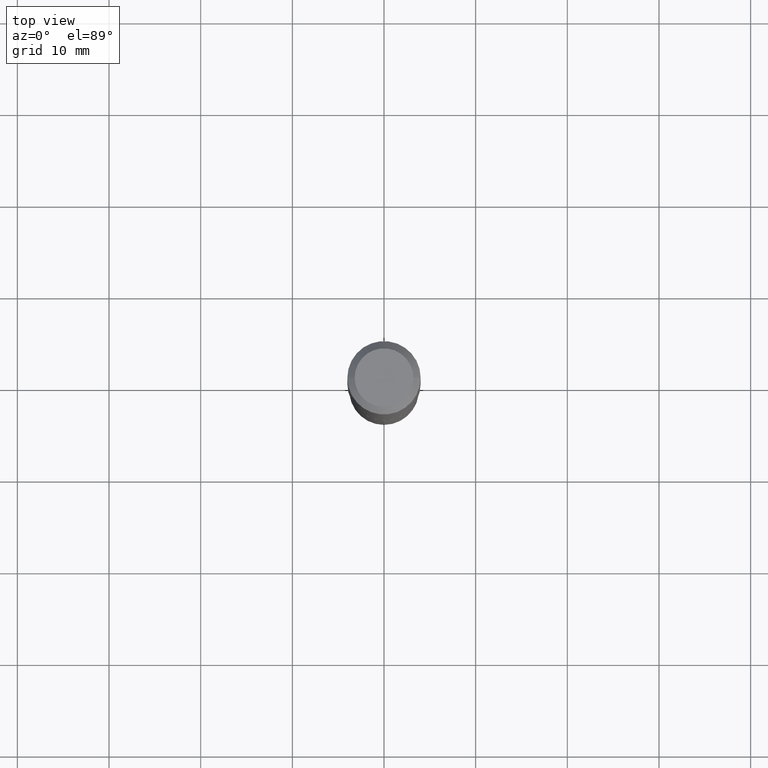
[diagram: clean part render]
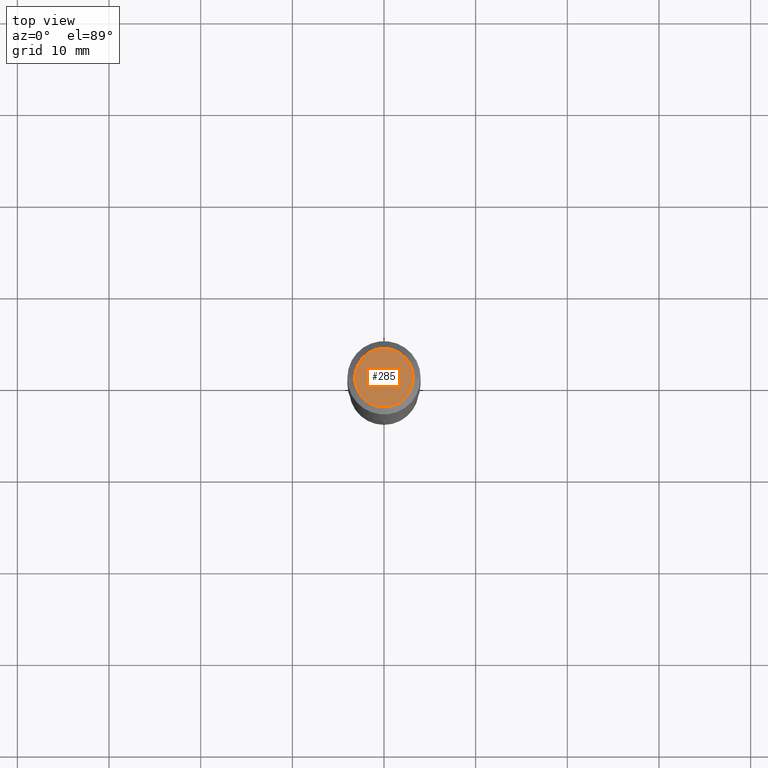
[diagram: same view with one face highlighted and labeled with its STEP entity id]
A machine part, top view. The second image highlights one B-rep face of the part: STEP entity #285.
In plain terms, the highlighted planar face has unit normal (0, -0, -1).
Its self-contained STEP definition (entity closure, byte-faithful):
#38 = CARTESIAN_POINT ( 'NONE',  ( -4.719860820353100843E-47, 6.738710358733633822E-33, 1.930043355456229866E-18 ) ) ;
#138 = CIRCLE ( 'NONE', #164, 0.1260000000000000009 ) ;
#152 = CARTESIAN_POINT ( 'NONE',  ( -9.439721640706201686E-47, 1.347742071746726764E-32, 3.860086710912459732E-18 ) ) ;
#161 = EDGE_CURVE ( 'NONE', #183, #429, #196, .T. ) ;
#163 = DIRECTION ( 'NONE',  ( -1.000000000000000000, 6.982962677686265922E-15, -4.876176775795935793E-29 ) ) ;
#164 = AXIS2_PLACEMENT_3D ( 'NONE', #152, #224, #295 ) ;
#168 = CARTESIAN_POINT ( 'NONE',  ( -0.1260000000000000009, 9.348441284752484904E-16, 3.860086710906114178E-18 ) ) ;
#183 = VERTEX_POINT ( 'NONE', #168 ) ;
#196 = CIRCLE ( 'NONE', #260, 0.1260000000000000009 ) ;
#201 = EDGE_LOOP ( 'NONE', ( #247, #215 ) ) ;
#208 = CARTESIAN_POINT ( 'NONE',  ( -9.439721640706201686E-47, 1.347742071746726764E-32, 3.860086710912459732E-18 ) ) ;
#215 = ORIENTED_EDGE ( 'NONE', *, *, #249, .T. ) ;
#224 = DIRECTION ( 'NONE',  ( -2.445468806185136597E-29, 3.491481338843145583E-15, 1.000000000000000000 ) ) ;
#247 = ORIENTED_EDGE ( 'NONE', *, *, #161, .T. ) ;
#249 = EDGE_CURVE ( 'NONE', #429, #183, #138, .T. ) ;
#260 = AXIS2_PLACEMENT_3D ( 'NONE', #208, #284, #433 ) ;
#278 = PLANE ( 'NONE',  #326 ) ;
#284 = DIRECTION ( 'NONE',  ( -2.445468806185136597E-29, 3.491481338843145583E-15, 1.000000000000000000 ) ) ;
#285 = ADVANCED_FACE ( 'NONE', ( #489 ), #278, .F. ) ;
#295 = DIRECTION ( 'NONE',  ( 1.000000000000000000, -6.982962677686265922E-15, 4.876281427513067258E-29 ) ) ;
#326 = AXIS2_PLACEMENT_3D ( 'NONE', #38, #349, #163 ) ;
#349 = DIRECTION ( 'NONE',  ( 2.438088387897960049E-29, -3.491481338843145188E-15, -1.000000000000000000 ) ) ;
#422 = CARTESIAN_POINT ( 'NONE',  ( 0.1260000000000000009, -1.027466422270894443E-15, 3.860086710919128072E-18 ) ) ;
#429 = VERTEX_POINT ( 'NONE', #422 ) ;
#433 = DIRECTION ( 'NONE',  ( 1.000000000000000000, -6.982962677686265922E-15, 4.876281427513067258E-29 ) ) ;
#489 = FACE_OUTER_BOUND ( 'NONE', #201, .T. ) ;